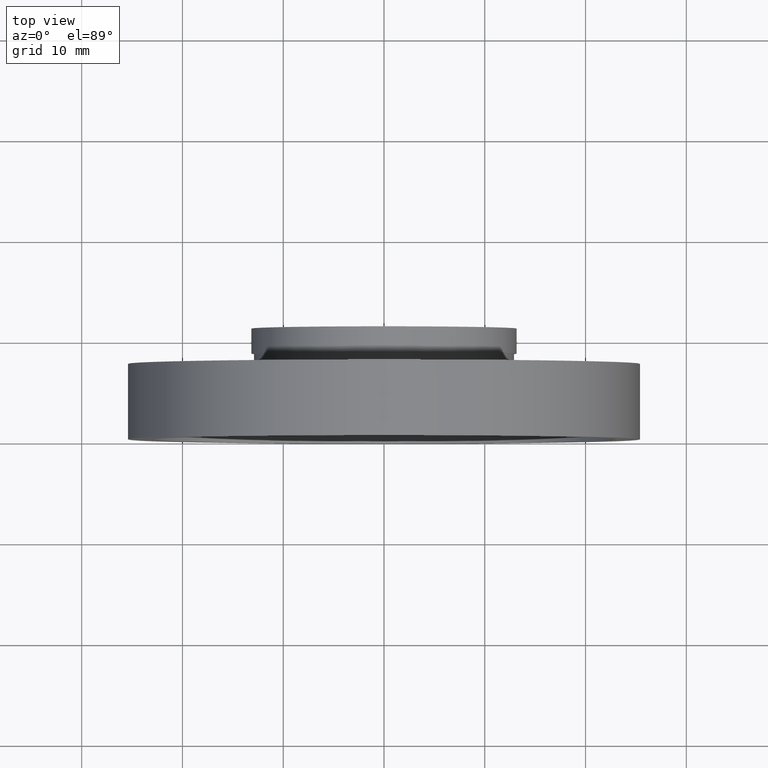
[diagram: clean part render]
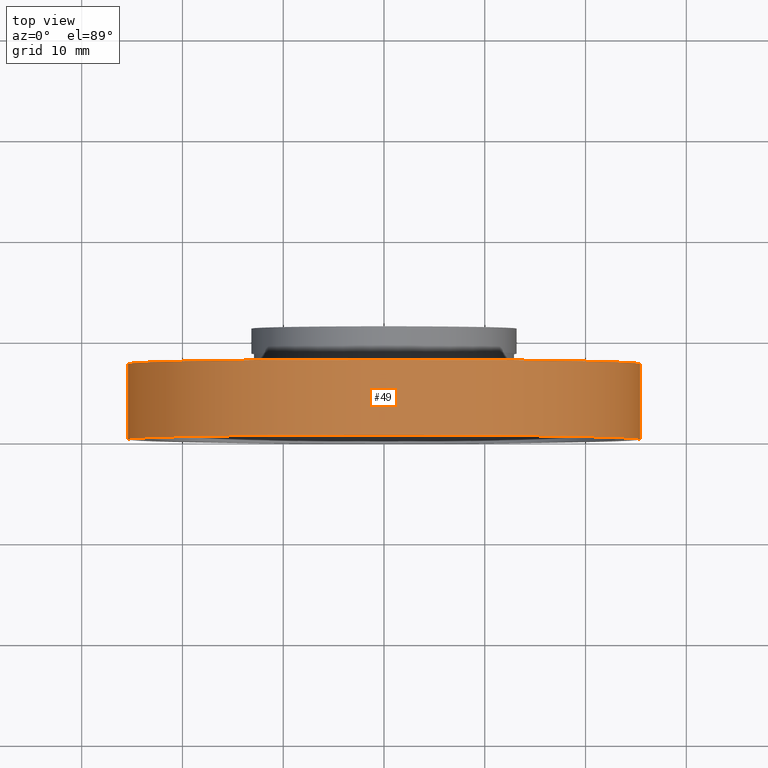
[diagram: same view with one face highlighted and labeled with its STEP entity id]
A machine part, top view. The second image highlights one B-rep face of the part: STEP entity #49.
In plain terms, the highlighted cylindrical surface (partial cylindrical patch) has radius 25.4 mm, axis along (-0, 1, -0).
Its self-contained STEP definition (entity closure, byte-faithful):
#5 = DIRECTION ( 'NONE',  ( -1.224646799147351000E-016, 1.000000000000000000, -0.0000000000000000000 ) ) ;
#10 = DIRECTION ( 'NONE',  ( -1.000000000000000000, -1.365923996832131600E-016, 0.0000000000000000000 ) ) ;
#38 = CARTESIAN_POINT ( 'NONE',  ( -25.39999999999999100, -6.580049821787884700E-015, 0.0000000000000000000 ) ) ;
#49 = ADVANCED_FACE ( 'NONE', ( #559 ), #138, .T. ) ;
#65 = CARTESIAN_POINT ( 'NONE',  ( 25.39999999999999900, -3.588440821193433400E-016, 3.110602869834276900E-015 ) ) ;
#76 = VERTEX_POINT ( 'NONE', #38 ) ;
#89 = CARTESIAN_POINT ( 'NONE',  ( 25.39999999999999900, 16.88601823708208000, 3.110602869834276900E-015 ) ) ;
#90 = VECTOR ( 'NONE', #165, 1000.000000000000000 ) ;
#92 = DIRECTION ( 'NONE',  ( -1.000000000000000000, -1.365923996832131600E-016, 0.0000000000000000000 ) ) ;
#128 = ORIENTED_EDGE ( 'NONE', *, *, #578, .F. ) ;
#138 = CYLINDRICAL_SURFACE ( 'NONE', #309, 25.39999999999999900 ) ;
#165 = DIRECTION ( 'NONE',  ( -1.224646799147351000E-016, 1.000000000000000000, -0.0000000000000000000 ) ) ;
#175 = ORIENTED_EDGE ( 'NONE', *, *, #446, .F. ) ;
#180 = VECTOR ( 'NONE', #5, 1000.000000000000000 ) ;
#186 = EDGE_CURVE ( 'NONE', #76, #610, #208, .T. ) ;
#204 = LINE ( 'NONE', #586, #180 ) ;
#208 = CIRCLE ( 'NONE', #511, 25.39999999999999500 ) ;
#259 = CARTESIAN_POINT ( 'NONE',  ( 25.39999999999999900, 7.500000000000000000, 3.110602869834276900E-015 ) ) ;
#306 = CARTESIAN_POINT ( 'NONE',  ( 1.149455719078123100E-015, 7.499999999999996400, 0.0000000000000000000 ) ) ;
#309 = AXIS2_PLACEMENT_3D ( 'NONE', #470, #521, #92 ) ;
#369 = ORIENTED_EDGE ( 'NONE', *, *, #585, .T. ) ;
#374 = AXIS2_PLACEMENT_3D ( 'NONE', #306, #454, #10 ) ;
#397 = CIRCLE ( 'NONE', #374, 25.39999999999999900 ) ;
#399 = ORIENTED_EDGE ( 'NONE', *, *, #186, .T. ) ;
#400 = CARTESIAN_POINT ( 'NONE',  ( 2.067940818438636500E-015, -3.469446951953614200E-015, 0.0000000000000000000 ) ) ;
#419 = EDGE_LOOP ( 'NONE', ( #399, #369, #175, #128 ) ) ;
#443 = LINE ( 'NONE', #89, #90 ) ;
#446 = EDGE_CURVE ( 'NONE', #500, #534, #397, .T. ) ;
#454 = DIRECTION ( 'NONE',  ( -1.224646799147351000E-016, 1.000000000000000000, -0.0000000000000000000 ) ) ;
#470 = CARTESIAN_POINT ( 'NONE',  ( 0.0000000000000000000, 16.88601823708207700, 0.0000000000000000000 ) ) ;
#493 = DIRECTION ( 'NONE',  ( -1.224646799147351000E-016, 1.000000000000000000, -0.0000000000000000000 ) ) ;
#500 = VERTEX_POINT ( 'NONE', #593 ) ;
#506 = DIRECTION ( 'NONE',  ( -1.000000000000000000, -1.224646799147351000E-016, 0.0000000000000000000 ) ) ;
#511 = AXIS2_PLACEMENT_3D ( 'NONE', #400, #493, #506 ) ;
#521 = DIRECTION ( 'NONE',  ( -1.224646799147351000E-016, 1.000000000000000000, -0.0000000000000000000 ) ) ;
#534 = VERTEX_POINT ( 'NONE', #259 ) ;
#559 = FACE_OUTER_BOUND ( 'NONE', #419, .T. ) ;
#578 = EDGE_CURVE ( 'NONE', #76, #500, #204, .T. ) ;
#585 = EDGE_CURVE ( 'NONE', #610, #534, #443, .T. ) ;
#586 = CARTESIAN_POINT ( 'NONE',  ( -25.39999999999999900, 16.88601823708207300, 0.0000000000000000000 ) ) ;
#593 = CARTESIAN_POINT ( 'NONE',  ( -25.39999999999999900, 7.499999999999992900, 0.0000000000000000000 ) ) ;
#610 = VERTEX_POINT ( 'NONE', #65 ) ;